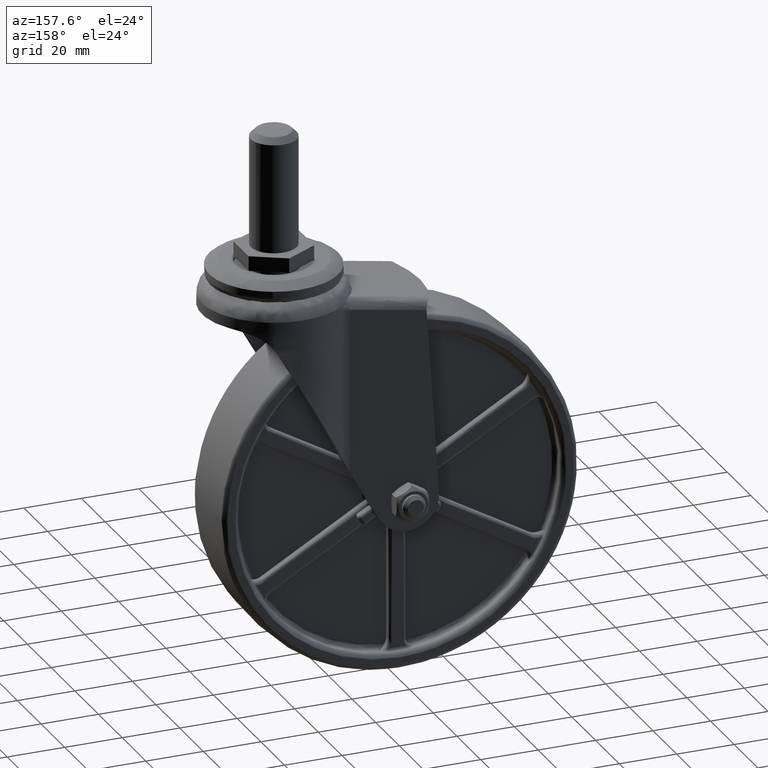
[diagram: clean part render]
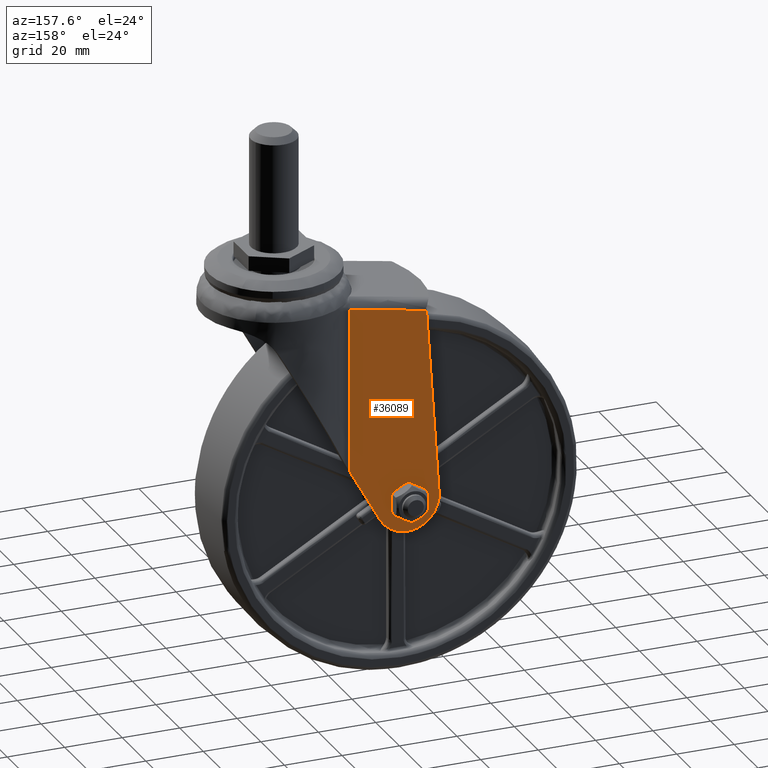
[diagram: same view with one face highlighted and labeled with its STEP entity id]
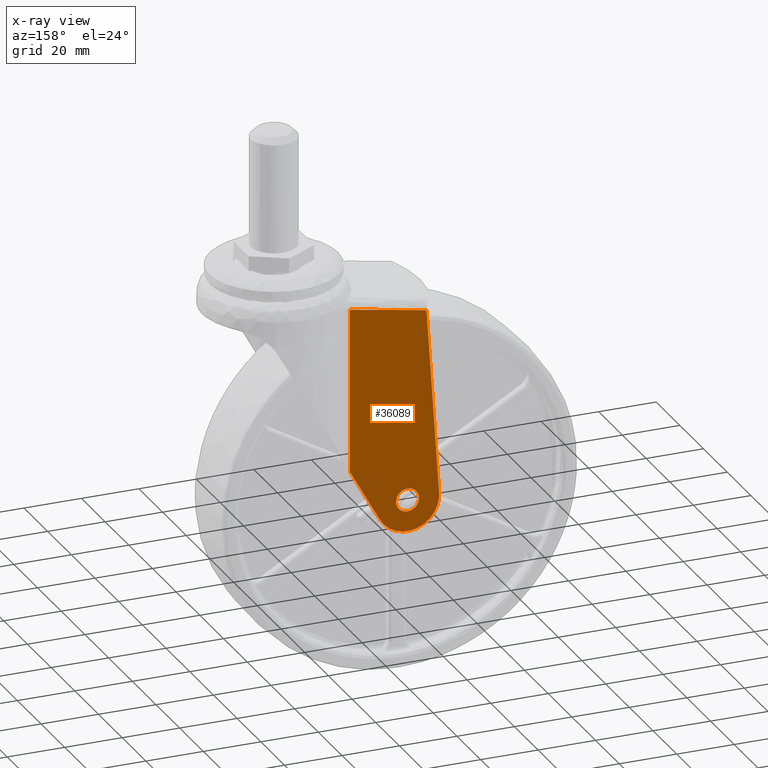
[diagram: x-ray of the same camera — body ghosted, the highlighted face saturated]
A machine part, auxiliary view. The second image highlights one B-rep face of the part: STEP entity #36089.
The next image is the same camera in x-ray: the body ghosted, the highlighted face saturated — about 0% of this face is hidden behind the body in this view.
In plain terms, the highlighted face is a freeform B-spline surface patch.
Its self-contained STEP definition (entity closure, byte-faithful):
#31962=CARTESIAN_POINT('',(-3.987669334919666,18.299990000000001,-0.313836383074597));
#31963=VERTEX_POINT('',#31962);
#31969=CARTESIAN_POINT('',(0.0,18.299990000000001,4.0));
#31970=VERTEX_POINT('',#31969);
#31971=CARTESIAN_POINT('',(-3.987669334919665,18.299990000000001,-0.313836383074597));
#31972=CARTESIAN_POINT('',(-4.000000000000000,18.299989999999998,-0.157160428194651));
#31973=CARTESIAN_POINT('',(-4.0,18.299990000000001,0.0));
#31974=CARTESIAN_POINT('',(-4.000000000000000,18.299990000000001,4.000000000000000));
#31975=CARTESIAN_POINT('',(0.0,18.299990000000001,4.0));
#31983=(BOUNDED_CURVE()B_SPLINE_CURVE(2,(#31971,#31972,#31973,#31974,#31975),.UNSPECIFIED.,.F.,.U.)B_SPLINE_CURVE_WITH_KNOTS((3,2,3),(0.736331300618734,0.750000000000000,1.0),.UNSPECIFIED.)CURVE()GEOMETRIC_REPRESENTATION_ITEM()RATIONAL_B_SPLINE_CURVE((0.969723356142530,0.983986122564910,1.0,0.707106781186548,1.0))REPRESENTATION_ITEM(''));
#31984=EDGE_CURVE('',#31963,#31970,#31983,.T.);
#31986=CARTESIAN_POINT('',(3.987669334919666,18.299990000000001,0.313836383074597));
#31987=VERTEX_POINT('',#31986);
#31988=CARTESIAN_POINT('',(0.0,18.299990000000001,4.0));
#31989=CARTESIAN_POINT('',(3.697561966329208,18.299990000000005,4.000000000000000));
#31990=CARTESIAN_POINT('',(3.987669334919665,18.299989999999994,0.313836383074597));
#31998=(BOUNDED_CURVE()B_SPLINE_CURVE(2,(#31988,#31989,#31990),.UNSPECIFIED.,.F.,.U.)B_SPLINE_CURVE_WITH_KNOTS((3,3),(0.0,0.236331300618734),.UNSPECIFIED.)CURVE()GEOMETRIC_REPRESENTATION_ITEM()RATIONAL_B_SPLINE_CURVE((1.0,0.723120658621637,0.969723356142530))REPRESENTATION_ITEM(''));
#31999=EDGE_CURVE('',#31970,#31987,#31998,.T.);
#32045=CARTESIAN_POINT('',(0.0,18.299990000000001,-4.0));
#32046=VERTEX_POINT('',#32045);
#32047=CARTESIAN_POINT('',(3.987669334919666,18.299989999999994,0.313836383074597));
#32048=CARTESIAN_POINT('',(4.0,18.299989999999998,0.157160428194652));
#32049=CARTESIAN_POINT('',(4.0,18.299990000000001,0.0));
#32050=CARTESIAN_POINT('',(4.000000000000000,18.299990000000001,-4.000000000000000));
#32051=CARTESIAN_POINT('',(0.0,18.299990000000001,-4.0));
#32059=(BOUNDED_CURVE()B_SPLINE_CURVE(2,(#32047,#32048,#32049,#32050,#32051),.UNSPECIFIED.,.F.,.U.)B_SPLINE_CURVE_WITH_KNOTS((3,2,3),(0.236331300618734,0.250000000000000,0.500000000000000),.UNSPECIFIED.)CURVE()GEOMETRIC_REPRESENTATION_ITEM()RATIONAL_B_SPLINE_CURVE((0.969723356142530,0.983986122564910,1.0,0.707106781186548,1.0))REPRESENTATION_ITEM(''));
#32060=EDGE_CURVE('',#31987,#32046,#32059,.T.);
#32062=CARTESIAN_POINT('',(0.0,18.299990000000001,-4.0));
#32063=CARTESIAN_POINT('',(-3.697561966329232,18.299989999999994,-4.000000000000000));
#32064=CARTESIAN_POINT('',(-3.987669334919665,18.299990000000005,-0.313836383074597));
#32072=(BOUNDED_CURVE()B_SPLINE_CURVE(2,(#32062,#32063,#32064),.UNSPECIFIED.,.F.,.U.)B_SPLINE_CURVE_WITH_KNOTS((3,3),(0.500000000000000,0.736331300618735),.UNSPECIFIED.)CURVE()GEOMETRIC_REPRESENTATION_ITEM()RATIONAL_B_SPLINE_CURVE((1.0,0.723120658621636,0.969723356142532))REPRESENTATION_ITEM(''));
#32073=EDGE_CURVE('',#32046,#31963,#32072,.T.);
#33991=CARTESIAN_POINT('',(20.102633358060100,18.299990000000001,70.409649439843790));
#33992=VERTEX_POINT('',#33991);
#34017=CARTESIAN_POINT('',(20.102633358060000,18.299990000000001,13.331849330000979));
#34018=VERTEX_POINT('',#34017);
#34027=CARTESIAN_POINT('',(20.102633358060100,18.299990000000001,70.409649439843790));
#34028=CARTESIAN_POINT('',(20.102633358060000,18.299990000000001,13.331849330000979));
#34029=QUASI_UNIFORM_CURVE('',1,(#34027,#34028),.UNSPECIFIED.,.F.,.U.);
#34030=EDGE_CURVE('',#33992,#34018,#34029,.T.);
#35182=CARTESIAN_POINT('',(-6.599504122434451,18.299990000000001,65.701342289655898));
#35183=VERTEX_POINT('',#35182);
#35184=CARTESIAN_POINT('',(-6.599504122434451,18.299990000000001,65.701342289655898));
#35185=CARTESIAN_POINT('',(20.102633358060100,18.299990000000001,70.409649439843790));
#35186=QUASI_UNIFORM_CURVE('',1,(#35184,#35185),.UNSPECIFIED.,.F.,.U.);
#35187=EDGE_CURVE('',#35183,#33992,#35186,.T.);
#35744=CARTESIAN_POINT('',(9.591182999999999,18.299990000000001,-5.386123999999881));
#35745=VERTEX_POINT('',#35744);
#35751=CARTESIAN_POINT('',(9.591182999999999,18.299990000000001,-5.386123999999881));
#35752=CARTESIAN_POINT('',(20.102633358060000,18.299990000000001,13.331849330000979));
#35753=QUASI_UNIFORM_CURVE('',1,(#35751,#35752),.UNSPECIFIED.,.F.,.U.);
#35754=EDGE_CURVE('',#35745,#34018,#35753,.T.);
#35919=CARTESIAN_POINT('',(-10.975132623484621,18.299990000000001,0.739232546349898));
#35920=VERTEX_POINT('',#35919);
#35926=CARTESIAN_POINT('',(9.591183000000003,18.299990000000001,-5.386123999999885));
#35927=CARTESIAN_POINT('',(5.286267950915184,18.299989999999998,-13.051981929386550));
#35928=CARTESIAN_POINT('',(-3.139859606060598,18.299990000000001,-10.542391172519871));
#35929=CARTESIAN_POINT('',(-11.565987163036388,18.299989999999998,-8.032800415653187));
#35930=CARTESIAN_POINT('',(-10.975132623484621,18.299990000000001,0.739232546349890));
#35938=(BOUNDED_CURVE()B_SPLINE_CURVE(2,(#35926,#35927,#35928,#35929,#35930),.UNSPECIFIED.,.F.,.U.)B_SPLINE_CURVE_WITH_KNOTS((3,2,3),(0.0,0.500000000000000,1.0),.UNSPECIFIED.)CURVE()GEOMETRIC_REPRESENTATION_ITEM()RATIONAL_B_SPLINE_CURVE((1.0,0.781149641739967,1.0,0.781149641739967,1.0))REPRESENTATION_ITEM(''));
#35939=EDGE_CURVE('',#35745,#35920,#35938,.T.);
#36067=CARTESIAN_POINT('',(-12.550617559899599,18.299990000000001,-15.064198904967309));
#36068=CARTESIAN_POINT('',(-12.550617559899599,18.299990000000001,74.475958177999900));
#36069=CARTESIAN_POINT('',(21.656067572457530,18.299990000000001,-15.064198904967309));
#36070=CARTESIAN_POINT('',(21.656067572457530,18.299990000000001,74.475958177999900));
#36071=B_SPLINE_SURFACE_WITH_KNOTS('',1,1,((#36067,#36069),(#36068,#36070)),.UNSPECIFIED.,.F.,.F.,.U.,(2,2),(2,2),(0.0,89.540157082967212),(0.0,34.206685132357130),.UNSPECIFIED.);
#36072=ORIENTED_EDGE('',*,*,#35187,.T.);
#36073=ORIENTED_EDGE('',*,*,#34030,.T.);
#36074=ORIENTED_EDGE('',*,*,#35754,.F.);
#36075=ORIENTED_EDGE('',*,*,#35939,.T.);
#36076=CARTESIAN_POINT('',(-6.599504122434451,18.299990000000001,65.701342289655898));
#36077=CARTESIAN_POINT('',(-10.975132623484621,18.299990000000001,0.739232546349898));
#36078=QUASI_UNIFORM_CURVE('',1,(#36076,#36077),.UNSPECIFIED.,.F.,.U.);
#36079=EDGE_CURVE('',#35183,#35920,#36078,.T.);
#36080=ORIENTED_EDGE('',*,*,#36079,.F.);
#36081=EDGE_LOOP('',(#36072,#36073,#36074,#36075,#36080));
#36082=FACE_OUTER_BOUND('',#36081,.T.);
#36083=ORIENTED_EDGE('',*,*,#32073,.F.);
#36084=ORIENTED_EDGE('',*,*,#32060,.F.);
#36085=ORIENTED_EDGE('',*,*,#31999,.F.);
#36086=ORIENTED_EDGE('',*,*,#31984,.F.);
#36087=EDGE_LOOP('',(#36083,#36084,#36085,#36086));
#36088=FACE_BOUND('',#36087,.T.);
#36089=ADVANCED_FACE('',(#36082,#36088),#36071,.T.);